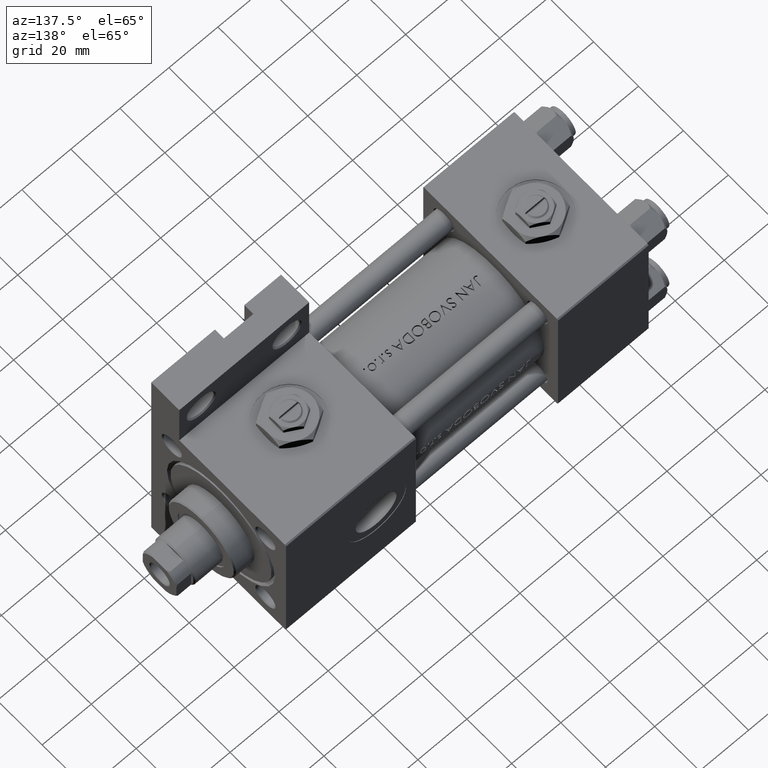
[diagram: clean part render]
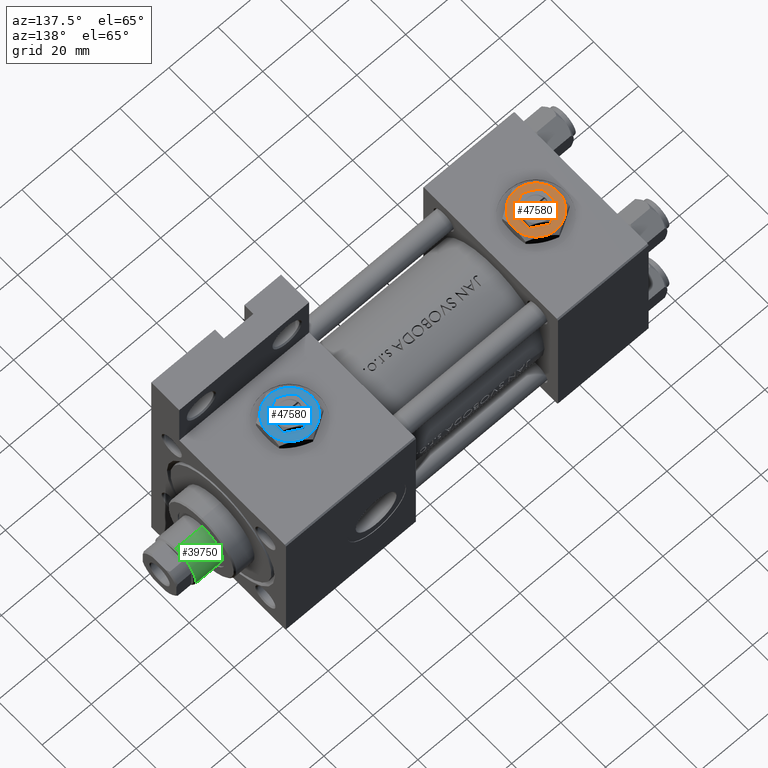
[diagram: same view with three faces highlighted in distinct colors, each labeled with its STEP entity id]
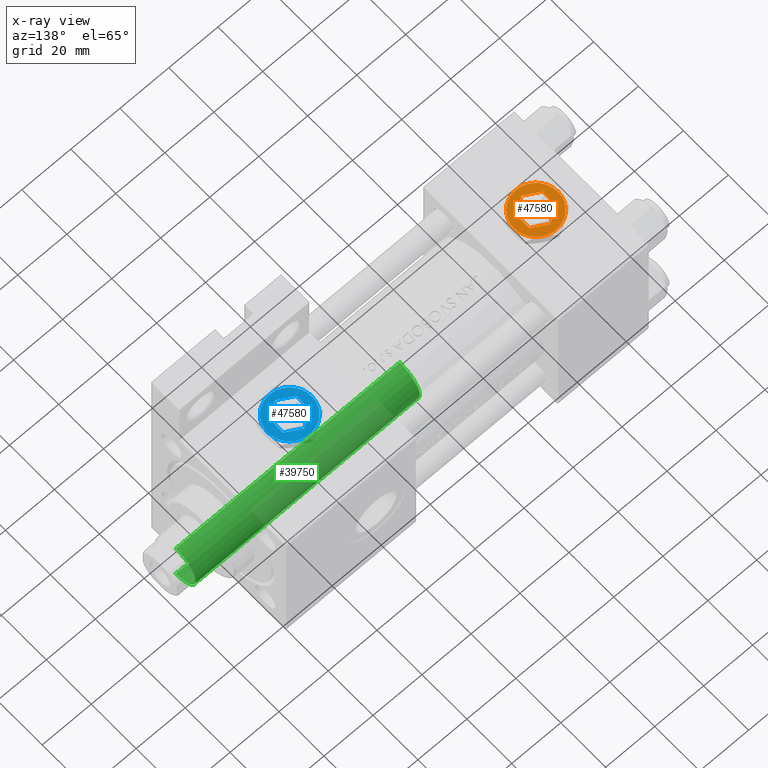
[diagram: x-ray of the same camera — body ghosted, the three highlighted faces saturated]
A machine part, auxiliary view with three faces highlighted in distinct colors.
The next image is the same camera in x-ray (body ghosted, the three faces saturated) — at least one of them is partly hidden behind the body in this view.
Their STEP definitions:

[orange] entity #47580 — the highlighted planar face has unit normal (0, 0, 1).
#323 = CARTESIAN_POINT ( 'NONE',  ( -5.500000000000000000, 3.175426480542941743, 4.299999999999999822 ) ) ;
#593 = CARTESIAN_POINT ( 'NONE',  ( 0.000000000000000000, 0.000000000000000000, 4.299999999999999822 ) ) ;
#1006 = DIRECTION ( 'NONE',  ( 1.000000000000000000, 0.000000000000000000, 0.000000000000000000 ) ) ;
#1616 = CARTESIAN_POINT ( 'NONE',  ( -5.500000000000000000, -3.175426480542942187, 4.299999999999999822 ) ) ;
#2027 = CARTESIAN_POINT ( 'NONE',  ( 0.000000000000000000, 0.000000000000000000, 4.299999999999999822 ) ) ;
#2375 = DIRECTION ( 'NONE',  ( 1.000000000000000000, 0.000000000000000000, -0.000000000000000000 ) ) ;
#3561 = LINE ( 'NONE', #39219, #12685 ) ;
#3965 = VECTOR ( 'NONE', #25034, 1000.000000000000000 ) ;
#4002 = LINE ( 'NONE', #46629, #25067 ) ;
#4018 = AXIS2_PLACEMENT_3D ( 'NONE', #593, #6717, #2375 ) ;
#4441 = FACE_BOUND ( 'NONE', #40655, .T. ) ;
#5114 = ORIENTED_EDGE ( 'NONE', *, *, #40839, .T. ) ;
#6717 = DIRECTION ( 'NONE',  ( 0.000000000000000000, 0.000000000000000000, 1.000000000000000000 ) ) ;
#7147 = VERTEX_POINT ( 'NONE', #23198 ) ;
#7308 = CARTESIAN_POINT ( 'NONE',  ( -4.499999999999998224, -7.794228634059947147, 4.299999999999999822 ) ) ;
#7328 = CARTESIAN_POINT ( 'NONE',  ( -1.343581385738006573E-15, -6.350852961085881709, 4.299999999999999822 ) ) ;
#7725 = CIRCLE ( 'NONE', #26594, 9.000000000000000000 ) ;
#7851 = EDGE_CURVE ( 'NONE', #36896, #37988, #24536, .T. ) ;
#8427 = CARTESIAN_POINT ( 'NONE',  ( 4.499999999999997335, -7.794228634059948035, 4.299999999999999822 ) ) ;
#8784 = CARTESIAN_POINT ( 'NONE',  ( 5.499999999999999112, 3.175426480542943075, 4.299999999999999822 ) ) ;
#8808 = VECTOR ( 'NONE', #42068, 1000.000000000000000 ) ;
#8891 = EDGE_CURVE ( 'NONE', #24740, #42176, #40077, .T. ) ;
#9283 = ORIENTED_EDGE ( 'NONE', *, *, #8891, .T. ) ;
#10698 = ORIENTED_EDGE ( 'NONE', *, *, #7851, .F. ) ;
#10703 = EDGE_CURVE ( 'NONE', #36874, #41919, #3561, .T. ) ;
#10768 = CARTESIAN_POINT ( 'NONE',  ( -1.343581385738006573E-15, -6.350852961085881709, 4.299999999999999822 ) ) ;
#11002 = ORIENTED_EDGE ( 'NONE', *, *, #49704, .F. ) ;
#11109 = EDGE_CURVE ( 'NONE', #7147, #36896, #4002, .T. ) ;
#11413 = CARTESIAN_POINT ( 'NONE',  ( 0.000000000000000000, 0.000000000000000000, 4.299999999999999822 ) ) ;
#11425 = AXIS2_PLACEMENT_3D ( 'NONE', #43844, #36157, #1006 ) ;
#11906 = DIRECTION ( 'NONE',  ( 1.000000000000000000, 0.000000000000000000, 0.000000000000000000 ) ) ;
#12385 = EDGE_CURVE ( 'NONE', #21643, #27273, #48913, .T. ) ;
#12685 = VECTOR ( 'NONE', #39480, 1000.000000000000000 ) ;
#13252 = CARTESIAN_POINT ( 'NONE',  ( 5.499999999999999112, 3.175426480542943075, 4.299999999999999822 ) ) ;
#13507 = LINE ( 'NONE', #13252, #28675 ) ;
#14102 = VERTEX_POINT ( 'NONE', #7328 ) ;
#16434 = VERTEX_POINT ( 'NONE', #47432 ) ;
#17102 = CIRCLE ( 'NONE', #39212, 9.000000000000000000 ) ;
#17171 = EDGE_CURVE ( 'NONE', #14102, #36874, #26400, .T. ) ;
#17453 = CARTESIAN_POINT ( 'NONE',  ( 4.500000000000000000, 7.794228634059947147, 4.299999999999999822 ) ) ;
#17691 = DIRECTION ( 'NONE',  ( 0.000000000000000000, 0.000000000000000000, 1.000000000000000000 ) ) ;
#17722 = ORIENTED_EDGE ( 'NONE', *, *, #37072, .T. ) ;
#17944 = DIRECTION ( 'NONE',  ( 1.000000000000000000, 0.000000000000000000, 0.000000000000000000 ) ) ;
#18531 = CIRCLE ( 'NONE', #24214, 9.000000000000000000 ) ;
#18597 = VECTOR ( 'NONE', #45117, 1000.000000000000000 ) ;
#19013 = ORIENTED_EDGE ( 'NONE', *, *, #19266, .T. ) ;
#19266 = EDGE_CURVE ( 'NONE', #27273, #24740, #17102, .T. ) ;
#19609 = DIRECTION ( 'NONE',  ( 0.000000000000000000, 0.000000000000000000, 1.000000000000000000 ) ) ;
#19853 = DIRECTION ( 'NONE',  ( 0.000000000000000000, 0.000000000000000000, 1.000000000000000000 ) ) ;
#20087 = PLANE ( 'NONE',  #4018 ) ;
#20469 = DIRECTION ( 'NONE',  ( 1.000000000000000000, 0.000000000000000000, 0.000000000000000000 ) ) ;
#21643 = VERTEX_POINT ( 'NONE', #22706 ) ;
#21697 = ORIENTED_EDGE ( 'NONE', *, *, #42622, .F. ) ;
#22706 = CARTESIAN_POINT ( 'NONE',  ( -9.000000000000000000, 0.000000000000000000, 4.299999999999999822 ) ) ;
#22718 = ORIENTED_EDGE ( 'NONE', *, *, #17171, .F. ) ;
#23198 = CARTESIAN_POINT ( 'NONE',  ( 0.000000000000000000, 6.350852961085883486, 4.299999999999999822 ) ) ;
#23350 = CARTESIAN_POINT ( 'NONE',  ( 8.999999999999998224, 0.000000000000000000, 4.299999999999999822 ) ) ;
#23926 = FACE_OUTER_BOUND ( 'NONE', #28599, .T. ) ;
#24214 = AXIS2_PLACEMENT_3D ( 'NONE', #27529, #39860, #36019 ) ;
#24536 = LINE ( 'NONE', #32503, #3965 ) ;
#24740 = VERTEX_POINT ( 'NONE', #8427 ) ;
#25034 = DIRECTION ( 'NONE',  ( 0.000000000000000000, -1.000000000000000000, 0.000000000000000000 ) ) ;
#25067 = VECTOR ( 'NONE', #50732, 1000.000000000000114 ) ;
#26400 = LINE ( 'NONE', #10768, #8808 ) ;
#26594 = AXIS2_PLACEMENT_3D ( 'NONE', #48457, #28411, #20469 ) ;
#27013 = CIRCLE ( 'NONE', #11425, 9.000000000000000000 ) ;
#27273 = VERTEX_POINT ( 'NONE', #7308 ) ;
#27529 = CARTESIAN_POINT ( 'NONE',  ( 0.000000000000000000, 0.000000000000000000, 4.299999999999999822 ) ) ;
#27544 = CARTESIAN_POINT ( 'NONE',  ( 0.000000000000000000, 0.000000000000000000, 4.299999999999999822 ) ) ;
#28411 = DIRECTION ( 'NONE',  ( 0.000000000000000000, 0.000000000000000000, 1.000000000000000000 ) ) ;
#28599 = EDGE_LOOP ( 'NONE', ( #9283, #17722, #5114, #44155, #30495, #19013 ) ) ;
#28675 = VECTOR ( 'NONE', #32998, 1000.000000000000000 ) ;
#30495 = ORIENTED_EDGE ( 'NONE', *, *, #12385, .T. ) ;
#31660 = DIRECTION ( 'NONE',  ( 1.000000000000000000, 0.000000000000000000, 0.000000000000000000 ) ) ;
#32503 = CARTESIAN_POINT ( 'NONE',  ( -5.500000000000000000, 3.175426480542941743, 4.299999999999999822 ) ) ;
#32998 = DIRECTION ( 'NONE',  ( -0.8660254037844387076, 0.4999999999999999445, 0.000000000000000000 ) ) ;
#33022 = ORIENTED_EDGE ( 'NONE', *, *, #10703, .F. ) ;
#34188 = VERTEX_POINT ( 'NONE', #17453 ) ;
#34972 = AXIS2_PLACEMENT_3D ( 'NONE', #11413, #19853, #11906 ) ;
#36019 = DIRECTION ( 'NONE',  ( 1.000000000000000000, 0.000000000000000000, 0.000000000000000000 ) ) ;
#36157 = DIRECTION ( 'NONE',  ( 0.000000000000000000, 0.000000000000000000, 1.000000000000000000 ) ) ;
#36874 = VERTEX_POINT ( 'NONE', #47045 ) ;
#36896 = VERTEX_POINT ( 'NONE', #323 ) ;
#37072 = EDGE_CURVE ( 'NONE', #42176, #34188, #7725, .T. ) ;
#37408 = LINE ( 'NONE', #49719, #18597 ) ;
#37988 = VERTEX_POINT ( 'NONE', #1616 ) ;
#39212 = AXIS2_PLACEMENT_3D ( 'NONE', #27544, #19609, #31660 ) ;
#39219 = CARTESIAN_POINT ( 'NONE',  ( 5.500000000000000888, -3.175426480542940855, 4.299999999999999822 ) ) ;
#39480 = DIRECTION ( 'NONE',  ( -2.731481088613017227E-16, 1.000000000000000000, 0.000000000000000000 ) ) ;
#39860 = DIRECTION ( 'NONE',  ( 0.000000000000000000, 0.000000000000000000, 1.000000000000000000 ) ) ;
#40077 = CIRCLE ( 'NONE', #48297, 9.000000000000000000 ) ;
#40655 = EDGE_LOOP ( 'NONE', ( #48689, #11002, #33022, #22718, #21697, #10698 ) ) ;
#40839 = EDGE_CURVE ( 'NONE', #34188, #16434, #18531, .T. ) ;
#41919 = VERTEX_POINT ( 'NONE', #8784 ) ;
#42068 = DIRECTION ( 'NONE',  ( 0.8660254037844388186, 0.4999999999999997224, 0.000000000000000000 ) ) ;
#42176 = VERTEX_POINT ( 'NONE', #23350 ) ;
#42622 = EDGE_CURVE ( 'NONE', #37988, #14102, #37408, .T. ) ;
#43844 = CARTESIAN_POINT ( 'NONE',  ( 0.000000000000000000, 0.000000000000000000, 4.299999999999999822 ) ) ;
#44155 = ORIENTED_EDGE ( 'NONE', *, *, #49244, .T. ) ;
#45117 = DIRECTION ( 'NONE',  ( 0.8660254037844387076, -0.4999999999999998890, 0.000000000000000000 ) ) ;
#46629 = CARTESIAN_POINT ( 'NONE',  ( 0.000000000000000000, 6.350852961085883486, 4.299999999999999822 ) ) ;
#47045 = CARTESIAN_POINT ( 'NONE',  ( 5.500000000000000888, -3.175426480542940855, 4.299999999999999822 ) ) ;
#47432 = CARTESIAN_POINT ( 'NONE',  ( -4.500000000000000000, 7.794228634059947147, 4.299999999999999822 ) ) ;
#47580 = ADVANCED_FACE ( 'NONE', ( #23926, #4441 ), #20087, .T. ) ;
#48297 = AXIS2_PLACEMENT_3D ( 'NONE', #2027, #17691, #17944 ) ;
#48457 = CARTESIAN_POINT ( 'NONE',  ( 0.000000000000000000, 0.000000000000000000, 4.299999999999999822 ) ) ;
#48689 = ORIENTED_EDGE ( 'NONE', *, *, #11109, .F. ) ;
#48913 = CIRCLE ( 'NONE', #34972, 9.000000000000000000 ) ;
#49244 = EDGE_CURVE ( 'NONE', #16434, #21643, #27013, .T. ) ;
#49704 = EDGE_CURVE ( 'NONE', #41919, #7147, #13507, .T. ) ;
#49719 = CARTESIAN_POINT ( 'NONE',  ( -5.500000000000000000, -3.175426480542942187, 4.299999999999999822 ) ) ;
#50732 = DIRECTION ( 'NONE',  ( -0.8660254037844385966, -0.4999999999999999445, 0.000000000000000000 ) ) ;

[blue] entity #47580 — the highlighted planar face has unit normal (0, 0, 1).
#323 = CARTESIAN_POINT ( 'NONE',  ( -5.500000000000000000, 3.175426480542941743, 4.299999999999999822 ) ) ;
#593 = CARTESIAN_POINT ( 'NONE',  ( 0.000000000000000000, 0.000000000000000000, 4.299999999999999822 ) ) ;
#1006 = DIRECTION ( 'NONE',  ( 1.000000000000000000, 0.000000000000000000, 0.000000000000000000 ) ) ;
#1616 = CARTESIAN_POINT ( 'NONE',  ( -5.500000000000000000, -3.175426480542942187, 4.299999999999999822 ) ) ;
#2027 = CARTESIAN_POINT ( 'NONE',  ( 0.000000000000000000, 0.000000000000000000, 4.299999999999999822 ) ) ;
#2375 = DIRECTION ( 'NONE',  ( 1.000000000000000000, 0.000000000000000000, -0.000000000000000000 ) ) ;
#3561 = LINE ( 'NONE', #39219, #12685 ) ;
#3965 = VECTOR ( 'NONE', #25034, 1000.000000000000000 ) ;
#4002 = LINE ( 'NONE', #46629, #25067 ) ;
#4018 = AXIS2_PLACEMENT_3D ( 'NONE', #593, #6717, #2375 ) ;
#4441 = FACE_BOUND ( 'NONE', #40655, .T. ) ;
#5114 = ORIENTED_EDGE ( 'NONE', *, *, #40839, .T. ) ;
#6717 = DIRECTION ( 'NONE',  ( 0.000000000000000000, 0.000000000000000000, 1.000000000000000000 ) ) ;
#7147 = VERTEX_POINT ( 'NONE', #23198 ) ;
#7308 = CARTESIAN_POINT ( 'NONE',  ( -4.499999999999998224, -7.794228634059947147, 4.299999999999999822 ) ) ;
#7328 = CARTESIAN_POINT ( 'NONE',  ( -1.343581385738006573E-15, -6.350852961085881709, 4.299999999999999822 ) ) ;
#7725 = CIRCLE ( 'NONE', #26594, 9.000000000000000000 ) ;
#7851 = EDGE_CURVE ( 'NONE', #36896, #37988, #24536, .T. ) ;
#8427 = CARTESIAN_POINT ( 'NONE',  ( 4.499999999999997335, -7.794228634059948035, 4.299999999999999822 ) ) ;
#8784 = CARTESIAN_POINT ( 'NONE',  ( 5.499999999999999112, 3.175426480542943075, 4.299999999999999822 ) ) ;
#8808 = VECTOR ( 'NONE', #42068, 1000.000000000000000 ) ;
#8891 = EDGE_CURVE ( 'NONE', #24740, #42176, #40077, .T. ) ;
#9283 = ORIENTED_EDGE ( 'NONE', *, *, #8891, .T. ) ;
#10698 = ORIENTED_EDGE ( 'NONE', *, *, #7851, .F. ) ;
#10703 = EDGE_CURVE ( 'NONE', #36874, #41919, #3561, .T. ) ;
#10768 = CARTESIAN_POINT ( 'NONE',  ( -1.343581385738006573E-15, -6.350852961085881709, 4.299999999999999822 ) ) ;
#11002 = ORIENTED_EDGE ( 'NONE', *, *, #49704, .F. ) ;
#11109 = EDGE_CURVE ( 'NONE', #7147, #36896, #4002, .T. ) ;
#11413 = CARTESIAN_POINT ( 'NONE',  ( 0.000000000000000000, 0.000000000000000000, 4.299999999999999822 ) ) ;
#11425 = AXIS2_PLACEMENT_3D ( 'NONE', #43844, #36157, #1006 ) ;
#11906 = DIRECTION ( 'NONE',  ( 1.000000000000000000, 0.000000000000000000, 0.000000000000000000 ) ) ;
#12385 = EDGE_CURVE ( 'NONE', #21643, #27273, #48913, .T. ) ;
#12685 = VECTOR ( 'NONE', #39480, 1000.000000000000000 ) ;
#13252 = CARTESIAN_POINT ( 'NONE',  ( 5.499999999999999112, 3.175426480542943075, 4.299999999999999822 ) ) ;
#13507 = LINE ( 'NONE', #13252, #28675 ) ;
#14102 = VERTEX_POINT ( 'NONE', #7328 ) ;
#16434 = VERTEX_POINT ( 'NONE', #47432 ) ;
#17102 = CIRCLE ( 'NONE', #39212, 9.000000000000000000 ) ;
#17171 = EDGE_CURVE ( 'NONE', #14102, #36874, #26400, .T. ) ;
#17453 = CARTESIAN_POINT ( 'NONE',  ( 4.500000000000000000, 7.794228634059947147, 4.299999999999999822 ) ) ;
#17691 = DIRECTION ( 'NONE',  ( 0.000000000000000000, 0.000000000000000000, 1.000000000000000000 ) ) ;
#17722 = ORIENTED_EDGE ( 'NONE', *, *, #37072, .T. ) ;
#17944 = DIRECTION ( 'NONE',  ( 1.000000000000000000, 0.000000000000000000, 0.000000000000000000 ) ) ;
#18531 = CIRCLE ( 'NONE', #24214, 9.000000000000000000 ) ;
#18597 = VECTOR ( 'NONE', #45117, 1000.000000000000000 ) ;
#19013 = ORIENTED_EDGE ( 'NONE', *, *, #19266, .T. ) ;
#19266 = EDGE_CURVE ( 'NONE', #27273, #24740, #17102, .T. ) ;
#19609 = DIRECTION ( 'NONE',  ( 0.000000000000000000, 0.000000000000000000, 1.000000000000000000 ) ) ;
#19853 = DIRECTION ( 'NONE',  ( 0.000000000000000000, 0.000000000000000000, 1.000000000000000000 ) ) ;
#20087 = PLANE ( 'NONE',  #4018 ) ;
#20469 = DIRECTION ( 'NONE',  ( 1.000000000000000000, 0.000000000000000000, 0.000000000000000000 ) ) ;
#21643 = VERTEX_POINT ( 'NONE', #22706 ) ;
#21697 = ORIENTED_EDGE ( 'NONE', *, *, #42622, .F. ) ;
#22706 = CARTESIAN_POINT ( 'NONE',  ( -9.000000000000000000, 0.000000000000000000, 4.299999999999999822 ) ) ;
#22718 = ORIENTED_EDGE ( 'NONE', *, *, #17171, .F. ) ;
#23198 = CARTESIAN_POINT ( 'NONE',  ( 0.000000000000000000, 6.350852961085883486, 4.299999999999999822 ) ) ;
#23350 = CARTESIAN_POINT ( 'NONE',  ( 8.999999999999998224, 0.000000000000000000, 4.299999999999999822 ) ) ;
#23926 = FACE_OUTER_BOUND ( 'NONE', #28599, .T. ) ;
#24214 = AXIS2_PLACEMENT_3D ( 'NONE', #27529, #39860, #36019 ) ;
#24536 = LINE ( 'NONE', #32503, #3965 ) ;
#24740 = VERTEX_POINT ( 'NONE', #8427 ) ;
#25034 = DIRECTION ( 'NONE',  ( 0.000000000000000000, -1.000000000000000000, 0.000000000000000000 ) ) ;
#25067 = VECTOR ( 'NONE', #50732, 1000.000000000000114 ) ;
#26400 = LINE ( 'NONE', #10768, #8808 ) ;
#26594 = AXIS2_PLACEMENT_3D ( 'NONE', #48457, #28411, #20469 ) ;
#27013 = CIRCLE ( 'NONE', #11425, 9.000000000000000000 ) ;
#27273 = VERTEX_POINT ( 'NONE', #7308 ) ;
#27529 = CARTESIAN_POINT ( 'NONE',  ( 0.000000000000000000, 0.000000000000000000, 4.299999999999999822 ) ) ;
#27544 = CARTESIAN_POINT ( 'NONE',  ( 0.000000000000000000, 0.000000000000000000, 4.299999999999999822 ) ) ;
#28411 = DIRECTION ( 'NONE',  ( 0.000000000000000000, 0.000000000000000000, 1.000000000000000000 ) ) ;
#28599 = EDGE_LOOP ( 'NONE', ( #9283, #17722, #5114, #44155, #30495, #19013 ) ) ;
#28675 = VECTOR ( 'NONE', #32998, 1000.000000000000000 ) ;
#30495 = ORIENTED_EDGE ( 'NONE', *, *, #12385, .T. ) ;
#31660 = DIRECTION ( 'NONE',  ( 1.000000000000000000, 0.000000000000000000, 0.000000000000000000 ) ) ;
#32503 = CARTESIAN_POINT ( 'NONE',  ( -5.500000000000000000, 3.175426480542941743, 4.299999999999999822 ) ) ;
#32998 = DIRECTION ( 'NONE',  ( -0.8660254037844387076, 0.4999999999999999445, 0.000000000000000000 ) ) ;
#33022 = ORIENTED_EDGE ( 'NONE', *, *, #10703, .F. ) ;
#34188 = VERTEX_POINT ( 'NONE', #17453 ) ;
#34972 = AXIS2_PLACEMENT_3D ( 'NONE', #11413, #19853, #11906 ) ;
#36019 = DIRECTION ( 'NONE',  ( 1.000000000000000000, 0.000000000000000000, 0.000000000000000000 ) ) ;
#36157 = DIRECTION ( 'NONE',  ( 0.000000000000000000, 0.000000000000000000, 1.000000000000000000 ) ) ;
#36874 = VERTEX_POINT ( 'NONE', #47045 ) ;
#36896 = VERTEX_POINT ( 'NONE', #323 ) ;
#37072 = EDGE_CURVE ( 'NONE', #42176, #34188, #7725, .T. ) ;
#37408 = LINE ( 'NONE', #49719, #18597 ) ;
#37988 = VERTEX_POINT ( 'NONE', #1616 ) ;
#39212 = AXIS2_PLACEMENT_3D ( 'NONE', #27544, #19609, #31660 ) ;
#39219 = CARTESIAN_POINT ( 'NONE',  ( 5.500000000000000888, -3.175426480542940855, 4.299999999999999822 ) ) ;
#39480 = DIRECTION ( 'NONE',  ( -2.731481088613017227E-16, 1.000000000000000000, 0.000000000000000000 ) ) ;
#39860 = DIRECTION ( 'NONE',  ( 0.000000000000000000, 0.000000000000000000, 1.000000000000000000 ) ) ;
#40077 = CIRCLE ( 'NONE', #48297, 9.000000000000000000 ) ;
#40655 = EDGE_LOOP ( 'NONE', ( #48689, #11002, #33022, #22718, #21697, #10698 ) ) ;
#40839 = EDGE_CURVE ( 'NONE', #34188, #16434, #18531, .T. ) ;
#41919 = VERTEX_POINT ( 'NONE', #8784 ) ;
#42068 = DIRECTION ( 'NONE',  ( 0.8660254037844388186, 0.4999999999999997224, 0.000000000000000000 ) ) ;
#42176 = VERTEX_POINT ( 'NONE', #23350 ) ;
#42622 = EDGE_CURVE ( 'NONE', #37988, #14102, #37408, .T. ) ;
#43844 = CARTESIAN_POINT ( 'NONE',  ( 0.000000000000000000, 0.000000000000000000, 4.299999999999999822 ) ) ;
#44155 = ORIENTED_EDGE ( 'NONE', *, *, #49244, .T. ) ;
#45117 = DIRECTION ( 'NONE',  ( 0.8660254037844387076, -0.4999999999999998890, 0.000000000000000000 ) ) ;
#46629 = CARTESIAN_POINT ( 'NONE',  ( 0.000000000000000000, 6.350852961085883486, 4.299999999999999822 ) ) ;
#47045 = CARTESIAN_POINT ( 'NONE',  ( 5.500000000000000888, -3.175426480542940855, 4.299999999999999822 ) ) ;
#47432 = CARTESIAN_POINT ( 'NONE',  ( -4.500000000000000000, 7.794228634059947147, 4.299999999999999822 ) ) ;
#47580 = ADVANCED_FACE ( 'NONE', ( #23926, #4441 ), #20087, .T. ) ;
#48297 = AXIS2_PLACEMENT_3D ( 'NONE', #2027, #17691, #17944 ) ;
#48457 = CARTESIAN_POINT ( 'NONE',  ( 0.000000000000000000, 0.000000000000000000, 4.299999999999999822 ) ) ;
#48689 = ORIENTED_EDGE ( 'NONE', *, *, #11109, .F. ) ;
#48913 = CIRCLE ( 'NONE', #34972, 9.000000000000000000 ) ;
#49244 = EDGE_CURVE ( 'NONE', #16434, #21643, #27013, .T. ) ;
#49704 = EDGE_CURVE ( 'NONE', #41919, #7147, #13507, .T. ) ;
#49719 = CARTESIAN_POINT ( 'NONE',  ( -5.500000000000000000, -3.175426480542942187, 4.299999999999999822 ) ) ;
#50732 = DIRECTION ( 'NONE',  ( -0.8660254037844385966, -0.4999999999999999445, 0.000000000000000000 ) ) ;

[green] entity #39750 — the highlighted cylindrical surface (edge-blend (fillet) strip) has radius 9 mm, axis along (-1, 0, 0).
#1778 = VERTEX_POINT ( 'NONE', #18776 ) ;
#3873 = EDGE_LOOP ( 'NONE', ( #45111, #30787, #24428, #30831 ) ) ;
#7141 = DIRECTION ( 'NONE',  ( -0.000000000000000000, -0.000000000000000000, -1.000000000000000000 ) ) ;
#8705 = DIRECTION ( 'NONE',  ( -0.000000000000000000, -0.000000000000000000, -1.000000000000000000 ) ) ;
#9043 = EDGE_CURVE ( 'NONE', #24174, #1778, #20428, .T. ) ;
#15039 = VECTOR ( 'NONE', #8705, 1000.000000000000000 ) ;
#15254 = CYLINDRICAL_SURFACE ( 'NONE', #20939, 9.000000000000000000 ) ;
#16169 = LINE ( 'NONE', #43870, #15039 ) ;
#17257 = CIRCLE ( 'NONE', #38535, 9.000000000000000000 ) ;
#18776 = CARTESIAN_POINT ( 'NONE',  ( -9.000000000000000000, 0.000000000000000000, 129.5000000000000000 ) ) ;
#18955 = LINE ( 'NONE', #19448, #31926 ) ;
#19448 = CARTESIAN_POINT ( 'NONE',  ( -9.000000000000000000, 0.000000000000000000, 130.0000000000000000 ) ) ;
#20428 = CIRCLE ( 'NONE', #45827, 9.000000000000000000 ) ;
#20939 = AXIS2_PLACEMENT_3D ( 'NONE', #50170, #34492, #38339 ) ;
#20957 = DIRECTION ( 'NONE',  ( 0.000000000000000000, 0.000000000000000000, -1.000000000000000000 ) ) ;
#21999 = EDGE_CURVE ( 'NONE', #1778, #37339, #18955, .T. ) ;
#23138 = EDGE_CURVE ( 'NONE', #37339, #36586, #17257, .T. ) ;
#24031 = CARTESIAN_POINT ( 'NONE',  ( 0.000000000000000000, 0.000000000000000000, 129.5000000000000000 ) ) ;
#24174 = VERTEX_POINT ( 'NONE', #28697 ) ;
#24428 = ORIENTED_EDGE ( 'NONE', *, *, #21999, .T. ) ;
#26842 = DIRECTION ( 'NONE',  ( 0.000000000000000000, 0.000000000000000000, 1.000000000000000000 ) ) ;
#27593 = DIRECTION ( 'NONE',  ( 1.000000000000000000, 0.000000000000000000, 0.000000000000000000 ) ) ;
#28697 = CARTESIAN_POINT ( 'NONE',  ( 9.000000000000000000, 1.102182119232617714E-15, 129.5000000000000000 ) ) ;
#30787 = ORIENTED_EDGE ( 'NONE', *, *, #9043, .T. ) ;
#30831 = ORIENTED_EDGE ( 'NONE', *, *, #23138, .T. ) ;
#31926 = VECTOR ( 'NONE', #7141, 1000.000000000000000 ) ;
#34122 = EDGE_CURVE ( 'NONE', #24174, #36586, #16169, .T. ) ;
#34492 = DIRECTION ( 'NONE',  ( -0.000000000000000000, -0.000000000000000000, -1.000000000000000000 ) ) ;
#34546 = CARTESIAN_POINT ( 'NONE',  ( -9.000000000000000000, 0.000000000000000000, 38.00000000000000000 ) ) ;
#35858 = DIRECTION ( 'NONE',  ( 1.000000000000000000, 0.000000000000000000, 0.000000000000000000 ) ) ;
#36586 = VERTEX_POINT ( 'NONE', #47100 ) ;
#37339 = VERTEX_POINT ( 'NONE', #34546 ) ;
#38339 = DIRECTION ( 'NONE',  ( -1.000000000000000000, 0.000000000000000000, 0.000000000000000000 ) ) ;
#38535 = AXIS2_PLACEMENT_3D ( 'NONE', #38914, #26842, #27593 ) ;
#38914 = CARTESIAN_POINT ( 'NONE',  ( 0.000000000000000000, 0.000000000000000000, 38.00000000000000000 ) ) ;
#39750 = ADVANCED_FACE ( 'NONE', ( #46305 ), #15254, .T. ) ;
#43870 = CARTESIAN_POINT ( 'NONE',  ( 9.000000000000000000, 1.102182119232617714E-15, 130.0000000000000000 ) ) ;
#45111 = ORIENTED_EDGE ( 'NONE', *, *, #34122, .F. ) ;
#45827 = AXIS2_PLACEMENT_3D ( 'NONE', #24031, #20957, #35858 ) ;
#46305 = FACE_OUTER_BOUND ( 'NONE', #3873, .T. ) ;
#47100 = CARTESIAN_POINT ( 'NONE',  ( 9.000000000000000000, 1.102182119232617714E-15, 38.00000000000000000 ) ) ;
#50170 = CARTESIAN_POINT ( 'NONE',  ( 0.000000000000000000, 0.000000000000000000, 130.0000000000000000 ) ) ;